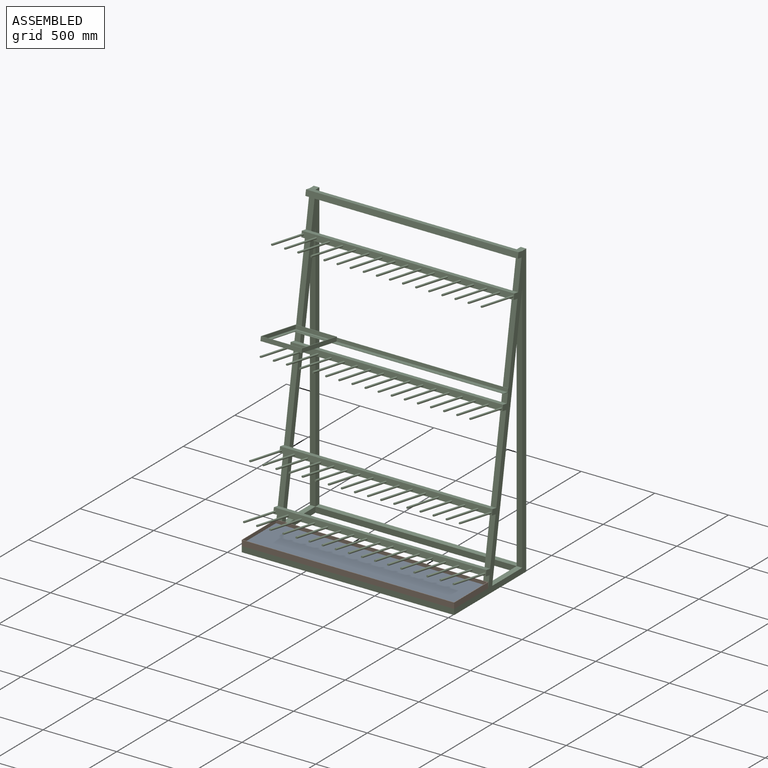
[diagram: assembled view]
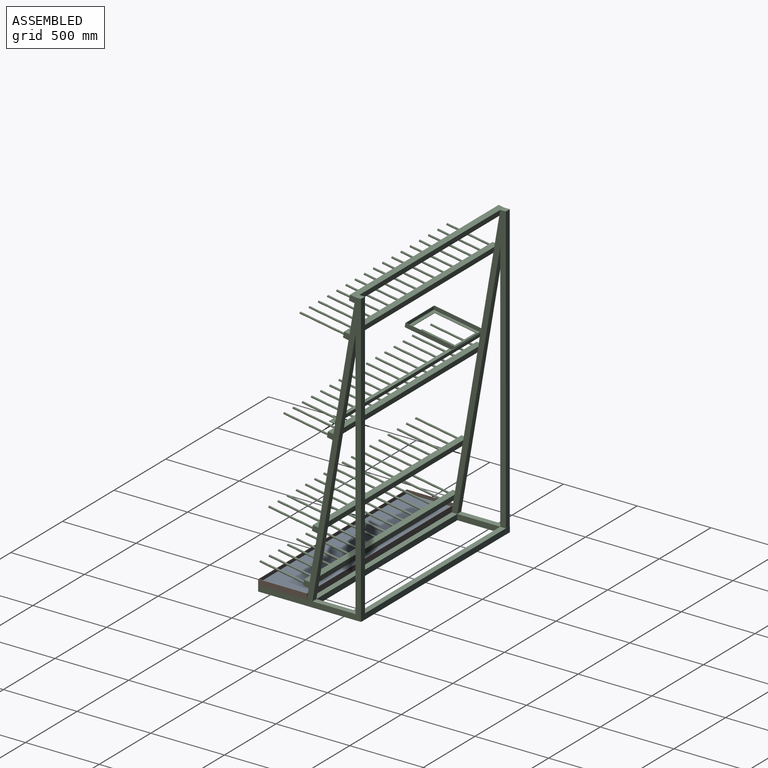
[diagram: assembled view, second angle]
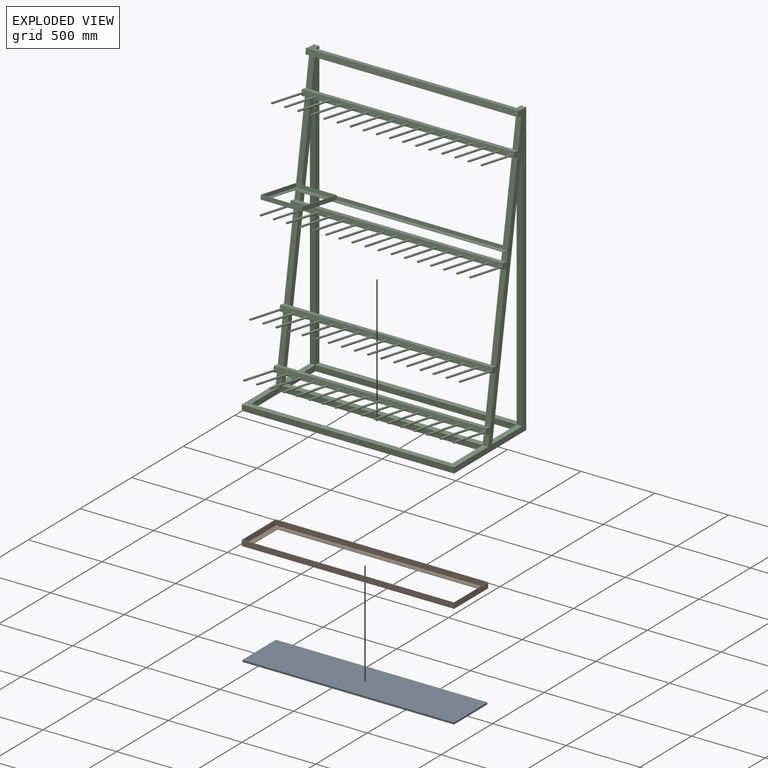
[diagram: exploded view]
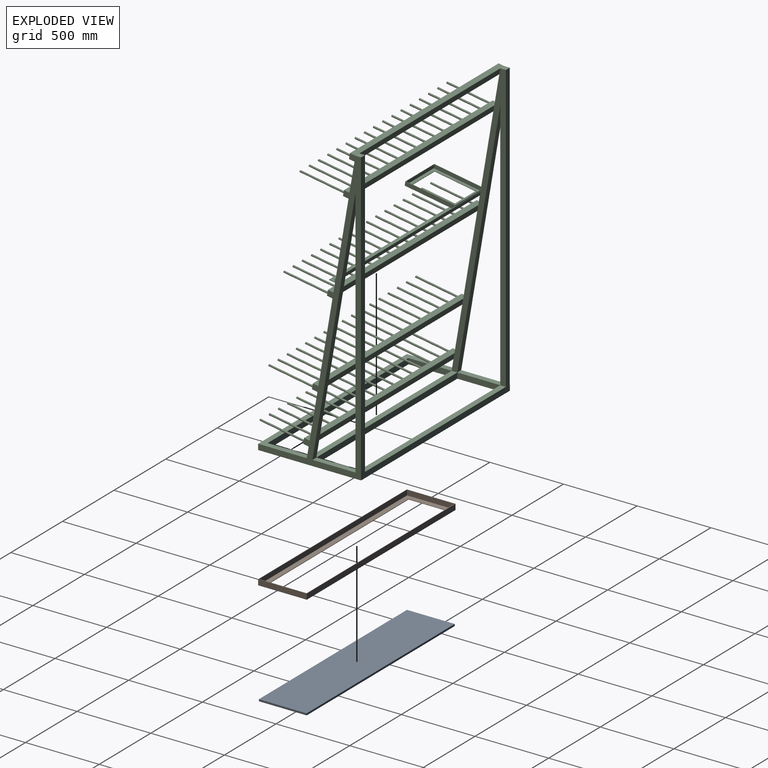
[diagram: exploded view, second angle]
ASSEMBLY  parts=3 mates=2
PART A: 6 faces, bbox 1435.1x323.9x12.7 mm
  f0: plane 1435.1x12.7mm, normal (0,-1,0), area 18225.8mm2, adj f1,f3,f4,f5
  f1: plane 323.85x12.7mm, normal (1,0,0), area 4112.9mm2, adj f0,f2,f4,f5
  f2: plane 1435.1x12.7mm, normal (0,1,0), area 18225.8mm2, adj f1,f3,f4,f5
  f3: plane 323.85x12.7mm, normal (-1,0,0), area 4112.9mm2, adj f0,f2,f4,f5
  f4: plane 1435.1x323.85mm, normal (0,0,1), area 464757.1mm2, adj f0,f1,f2,f3
  f5: plane 1435.1x323.85mm, normal (0,0,-1), area 464757.1mm2, adj f0,f1,f2,f3
PART B: 15 faces, bbox 1441.5x330.2x38.1 mm
  f0: plane 1435.1x323.85mm, normal (0,0,1), area 117983.6mm2, adj f4,f5,f6,f7,f10,f11,f12,f13
  f1: plane 1441.45x38.1mm, normal (0,-1,0), area 54919.2mm2, adj f2,f8,f9,f14
  f2: plane 330.2x38.1mm, normal (1,0,0), area 12580.6mm2, adj f1,f3,f9,f14
  f3: plane 1441.45x38.1mm, normal (0,1,0), area 54919.2mm2, adj f2,f8,f9,f14
  f4: plane 254x3.18mm, normal (-1,0,0), area 806.5mm2, adj f0,f5,f7,f9
  f5: plane 1365.25x3.18mm, normal (0,1,0), area 4334.7mm2, adj f0,f4,f6,f9
  f6: plane 254x3.18mm, normal (1,0,0), area 806.5mm2, adj f0,f5,f7,f9
  f7: plane 1365.25x3.18mm, normal (0,-1,0), area 4334.7mm2, adj f0,f4,f6,f9
  f8: plane 330.2x38.1mm, normal (-1,0,0), area 12580.6mm2, adj f1,f3,f9,f14
  f9: plane 1441.45x330.2mm, normal (0,0,-1), area 129193.3mm2, adj f1,f2,f3,f4,f5,f6,f7,f8
  f10: plane 1435.1x34.93mm, normal (0,-1,0), area 50120.9mm2, adj f0,f11,f13,f14
  f11: plane 323.85x34.93mm, normal (-1,0,0), area 11310.5mm2, adj f0,f10,f12,f14
  f12: plane 1435.1x34.93mm, normal (0,1,0), area 50120.9mm2, adj f0,f11,f13,f14
  f13: plane 323.85x34.93mm, normal (1,0,0), area 11310.5mm2, adj f0,f10,f12,f14
  f14: plane 1441.45x330.2mm, normal (0,0,1), area 11209.7mm2, adj f1,f2,f3,f8,f10,f11,f12,f13
PART C: 219 faces, bbox 1441.5x699x1987.6 mm
  f0: plane 1162.05x21.91mm, normal (0,-0.99,0.17), area 25826.6mm2, adj f27,f168,f170,f172
  f1: plane 331.79x273.05mm, normal (0,0.17,0.99), area 25120.9mm2, adj f174,f175,f176,f177,f180,f181,f182,f183
  f2: plane 300.49x279.4mm, normal (0,-0.17,-0.99), area 21290.3mm2, adj f33,f171,f172,f173,f174,f175,f177
  f3: plane 515.76x87.65mm, normal (0,-0.99,0.17), area 19932.3mm2, adj f16,f33,f59,f168
  f4: plane 62.6x38.1mm, normal (0,-0.99,0.17), area 2419.3mm2, adj f23,f27,f56,f167
  f5: plane 313.01x53.19mm, normal (0,-0.99,0.17), area 12096.7mm2, adj f16,f33,f50,f52
  f6: plane 563.42x95.75mm, normal (0,-0.99,0.17), area 21774.2mm2, adj f16,f33,f53,f55
  f7: plane 62.6x38.1mm, normal (0,-0.99,0.17), area 2419.3mm2, adj f16,f33,f56,f167
  f8: plane 200.33x38.1mm, normal (0,-0.99,0.17), area 7741.9mm2, adj f16,f33,f41,f58
  f9: plane 515.76x87.65mm, normal (0,-0.99,0.17), area 19932.3mm2, adj f23,f27,f59,f168
  f10: plane 200.33x38.1mm, normal (0,-0.99,0.17), area 7741.9mm2, adj f23,f27,f41,f58
  f11: plane 563.42x95.75mm, normal (0,-0.99,0.17), area 21774.2mm2, adj f23,f27,f53,f55
  f12: plane 313.01x53.19mm, normal (0,-0.99,0.17), area 12096.7mm2, adj f23,f27,f50,f52
  f13: plane 75.12x38.1mm, normal (0,-0.99,0.17), area 2903.2mm2, adj f23,f27,f45,f49
  f14: plane 292.1x38.1mm, normal (1,0,0), area 11129mm2, adj f15,f30,f45,f48
  f15: plane 1365.25x38.1mm, normal (0,-1,0), area 52016mm2, adj f14,f19,f30,f47
  f16: plane 1943.1x368.3mm, normal (1,0,0), area 144731.1mm2, adj f3,f5,f6,f7,f8,f17,f19,f20
  f17: plane 75.12x38.1mm, normal (0,-0.99,0.17), area 2903.2mm2, adj f16,f33,f45,f49
  f18: plane 291.55x38.1mm, normal (0,0,1), area 11108.2mm2, adj f20,f33,f35,f40
  f19: plane 1365.25x38.65mm, normal (0,0,1), area 52761.7mm2, adj f15,f16,f22,f23
  f20: plane 1715.68x38.1mm, normal (0,-1,0), area 65367.5mm2, adj f16,f18,f33,f40
  f21: plane 38.1x0.55mm, normal (0,0,1), area 20.8mm2, adj f33,f36,f37,f38
  f22: plane 1365.25x38.1mm, normal (0,1,0), area 52016mm2, adj f19,f24,f30,f35
  f23: plane 1943.1x368.3mm, normal (-1,0,0), area 144731.1mm2, adj f4,f9,f10,f11,f12,f13,f19,f25
  f24: plane 291.55x38.1mm, normal (-1,0,0), area 11108.2mm2, adj f22,f26,f30,f34
  f25: plane 1715.68x38.1mm, normal (0,-1,0), area 65367.5mm2, adj f23,f26,f27,f31
  f26: plane 291.55x38.1mm, normal (0,0,1), area 11108.2mm2, adj f24,f25,f27,f31
  f27: plane 1987.58x698.5mm, normal (1,0,0), area 178803.6mm2, adj f0,f4,f9,f10,f11,f12,f13,f25
  f28: plane 1981.2x1403.35mm, normal (0,1,0), area 127499.7mm2, adj f23,f27,f29,f30,f32,f36
  f29: plane 38.1x38.1mm, normal (0,0,1), area 1451.6mm2, adj f23,f27,f28,f42
  f30: plane 1441.45x699.05mm, normal (0,0,-1), area 210040.3mm2, adj f14,f15,f22,f24,f27,f28,f33,f34
  f31: plane 1715.68x291.55mm, normal (0,0.99,-0.17), area 66304.6mm2, adj f23,f25,f26,f27
  f32: plane 1365.25x38.1mm, normal (0,0,1), area 52016mm2, adj f16,f23,f28,f34
  f33: plane 1987.58x699.05mm, normal (-1,0,0), area 188622.8mm2, adj f2,f3,f5,f6,f7,f8,f17,f18
  f34: plane 1365.25x38.1mm, normal (0,-1,0), area 52016mm2, adj f24,f30,f32,f35
  f35: plane 291.55x38.1mm, normal (1,0,0), area 11108.2mm2, adj f18,f22,f30,f34
  f36: plane 38.1x0.55mm, normal (1,0,0), area 20.8mm2, adj f21,f28,f30,f37
  f37: plane 38.1x38.1mm, normal (0,1,0), area 1451.6mm2, adj f21,f30,f33,f36
  f38: plane 1943.1x38.1mm, normal (0,1,0), area 74032.1mm2, adj f16,f21,f33,f39
  f39: plane 38.1x38.1mm, normal (0,0,1), area 1451.6mm2, adj f16,f33,f38,f42
  f40: plane 1715.68x291.55mm, normal (0,0.99,-0.17), area 66304.6mm2, adj f16,f18,f20,f33
  f41: plane 1441.45x37.56mm, normal (0,-0.17,-0.99), area 54919.2mm2, adj f8,f10,f27,f33,f43,f44
  f42: plane 1441.45x37.56mm, normal (0,0.17,0.99), area 54919.2mm2, adj f27,f29,f33,f39,f43,f44
  f43: plane 1441.45x37.56mm, normal (0,-0.99,0.17), area 54919.2mm2, adj f27,f33,f41,f42
  f44: plane 1365.25x37.56mm, normal (0,0.99,-0.17), area 52016mm2, adj f16,f23,f41,f42
  f45: plane 1441.45x330.2mm, normal (0,0,1), area 77177.3mm2, adj f13,f14,f17,f27,f33,f46,f47,f48
  f46: plane 1441.45x38.1mm, normal (0,-1,0), area 54919.2mm2, adj f27,f30,f33,f45
  f47: plane 292.1x38.1mm, normal (-1,0,0), area 11129mm2, adj f15,f30,f45,f48
  f48: plane 1365.25x38.1mm, normal (0,1,0), area 52016mm2, adj f14,f30,f45,f47
  f49: plane 1441.45x37.56mm, normal (0,-0.17,-0.99), area 54919.2mm2, adj f13,f17,f27,f33,f51,f64
  f50: plane 1441.45x37.56mm, normal (0,0.17,0.99), area 54919.2mm2, adj f5,f12,f27,f33,f51,f64
  f51: plane 1441.45x37.56mm, normal (0,-0.99,0.17), area 52765.7mm2, adj f27,f33,f49,f50,f65,f67,f69,f71
  f52: plane 1441.45x37.56mm, normal (0,-0.17,-0.99), area 54919.2mm2, adj f5,f12,f27,f33,f54,f63
  f53: plane 1441.45x37.56mm, normal (0,0.17,0.99), area 54919.2mm2, adj f6,f11,f27,f33,f54,f63
  f54: plane 1441.45x37.56mm, normal (0,-0.99,0.17), area 52765.7mm2, adj f27,f33,f52,f53,f99,f101,f103,f105
  f55: plane 1441.45x37.56mm, normal (0,-0.17,-0.99), area 54919.2mm2, adj f6,f11,f27,f33,f57,f62
  f56: plane 1441.45x37.56mm, normal (0,0.17,0.99), area 54919.2mm2, adj f4,f7,f27,f33,f57,f62
  f57: plane 1441.45x37.56mm, normal (0,-0.99,0.17), area 52765.7mm2, adj f27,f33,f55,f56,f133,f135,f137,f139
  f58: plane 1441.45x37.56mm, normal (0,0.17,0.99), area 54919.2mm2, adj f8,f10,f27,f33,f60,f61
  f59: plane 1441.45x37.56mm, normal (0,-0.17,-0.99), area 54919.2mm2, adj f3,f9,f27,f33,f60,f61
  f60: plane 1441.45x37.56mm, normal (0,-0.99,0.17), area 52765.7mm2, adj f27,f33,f58,f59,f185,f187,f189,f191
  f61: plane 1365.25x37.56mm, normal (0,0.99,-0.17), area 52016mm2, adj f16,f23,f58,f59
  f62: plane 1365.25x37.56mm, normal (0,0.99,-0.17), area 52016mm2, adj f16,f23,f55,f56
  f63: plane 1365.25x37.56mm, normal (0,0.99,-0.17), area 52016mm2, adj f16,f23,f52,f53
  f64: plane 1365.25x37.56mm, normal (0,0.99,-0.17), area 52016mm2, adj f16,f23,f49,f50
  f65: cylinder r=6.35mm len=302.62mm, axis (0,0.99,-0.17), area 12161mm2, adj f51,f66
  f66: plane 12.7x12.52mm, normal (0,-0.99,0.17), area 126.7mm2, adj f65
  f67: cylinder r=6.35mm len=302.62mm, axis (0,0.99,-0.17), area 12161mm2, adj f51,f68
  f68: plane 12.7x12.52mm, normal (0,-0.99,0.17), area 126.7mm2, adj f67
  f69: cylinder r=6.35mm len=302.62mm, axis (0,0.99,-0.17), area 12161mm2, adj f51,f70
  f70: plane 12.7x12.52mm, normal (0,-0.99,0.17), area 126.7mm2, adj f69
  f71: cylinder r=6.35mm len=302.62mm, axis (0,0.99,-0.17), area 12161mm2, adj f51,f72
  f72: plane 12.7x12.52mm, normal (0,-0.99,0.17), area 126.7mm2, adj f71
  f73: cylinder r=6.35mm len=302.62mm, axis (0,0.99,-0.17), area 12161mm2, adj f51,f74
  f74: plane 12.7x12.52mm, normal (0,-0.99,0.17), area 126.7mm2, adj f73
  f75: cylinder r=6.35mm len=302.62mm, axis (0,0.99,-0.17), area 12161mm2, adj f51,f76
  f76: plane 12.7x12.52mm, normal (0,-0.99,0.17), area 126.7mm2, adj f75
  f77: cylinder r=6.35mm len=302.62mm, axis (0,0.99,-0.17), area 12161mm2, adj f51,f78
  f78: plane 12.7x12.52mm, normal (0,-0.99,0.17), area 126.7mm2, adj f77
  f79: cylinder r=6.35mm len=302.62mm, axis (0,0.99,-0.17), area 12161mm2, adj f51,f80
  f80: plane 12.7x12.52mm, normal (0,-0.99,0.17), area 126.7mm2, adj f79
  f81: cylinder r=6.35mm len=302.62mm, axis (0,0.99,-0.17), area 12161mm2, adj f51,f82
  f82: plane 12.7x12.52mm, normal (0,-0.99,0.17), area 126.7mm2, adj f81
  f83: cylinder r=6.35mm len=302.62mm, axis (0,0.99,-0.17), area 12161mm2, adj f51,f84
  f84: plane 12.7x12.52mm, normal (0,-0.99,0.17), area 126.7mm2, adj f83
  f85: cylinder r=6.35mm len=302.62mm, axis (0,0.99,-0.17), area 12161mm2, adj f51,f86
  f86: plane 12.7x12.52mm, normal (0,-0.99,0.17), area 126.7mm2, adj f85
  f87: cylinder r=6.35mm len=302.62mm, axis (0,0.99,-0.17), area 12161mm2, adj f51,f88
  f88: plane 12.7x12.52mm, normal (0,-0.99,0.17), area 126.7mm2, adj f87
  f89: cylinder r=6.35mm len=302.62mm, axis (0,0.99,-0.17), area 12161mm2, adj f51,f90
  f90: plane 12.7x12.52mm, normal (0,-0.99,0.17), area 126.7mm2, adj f89
  f91: cylinder r=6.35mm len=302.62mm, axis (0,0.99,-0.17), area 12161mm2, adj f51,f92
  f92: plane 12.7x12.52mm, normal (0,-0.99,0.17), area 126.7mm2, adj f91
  f93: cylinder r=6.35mm len=302.62mm, axis (0,0.99,-0.17), area 12161mm2, adj f51,f94
  f94: plane 12.7x12.52mm, normal (0,-0.99,0.17), area 126.7mm2, adj f93
  f95: cylinder r=6.35mm len=302.62mm, axis (0,0.99,-0.17), area 12161mm2, adj f51,f96
  f96: plane 12.7x12.52mm, normal (0,-0.99,0.17), area 126.7mm2, adj f95
  f97: cylinder r=6.35mm len=302.62mm, axis (0,0.99,-0.17), area 12161mm2, adj f51,f98
  f98: plane 12.7x12.52mm, normal (0,-0.99,0.17), area 126.7mm2, adj f97
  f99: cylinder r=6.35mm len=302.62mm, axis (0,0.99,-0.17), area 12161mm2, adj f54,f100
  f100: plane 12.7x12.52mm, normal (0,-0.99,0.17), area 126.7mm2, adj f99
  f101: cylinder r=6.35mm len=302.62mm, axis (0,0.99,-0.17), area 12161mm2, adj f54,f102
  f102: plane 12.7x12.52mm, normal (0,-0.99,0.17), area 126.7mm2, adj f101
  f103: cylinder r=6.35mm len=302.62mm, axis (0,0.99,-0.17), area 12161mm2, adj f54,f104
  f104: plane 12.7x12.52mm, normal (0,-0.99,0.17), area 126.7mm2, adj f103
  f105: cylinder r=6.35mm len=302.62mm, axis (0,0.99,-0.17), area 12161mm2, adj f54,f106
  f106: plane 12.7x12.52mm, normal (0,-0.99,0.17), area 126.7mm2, adj f105
  f107: cylinder r=6.35mm len=302.62mm, axis (0,0.99,-0.17), area 12161mm2, adj f54,f108
  f108: plane 12.7x12.52mm, normal (0,-0.99,0.17), area 126.7mm2, adj f107
  f109: cylinder r=6.35mm len=302.62mm, axis (0,0.99,-0.17), area 12161mm2, adj f54,f110
  f110: plane 12.7x12.52mm, normal (0,-0.99,0.17), area 126.7mm2, adj f109
  f111: cylinder r=6.35mm len=302.62mm, axis (0,0.99,-0.17), area 12161mm2, adj f54,f112
  f112: plane 12.7x12.52mm, normal (0,-0.99,0.17), area 126.7mm2, adj f111
  f113: cylinder r=6.35mm len=302.62mm, axis (0,0.99,-0.17), area 12161mm2, adj f54,f114
  f114: plane 12.7x12.52mm, normal (0,-0.99,0.17), area 126.7mm2, adj f113
  f115: cylinder r=6.35mm len=302.62mm, axis (0,0.99,-0.17), area 12161mm2, adj f54,f116
  f116: plane 12.7x12.52mm, normal (0,-0.99,0.17), area 126.7mm2, adj f115
  f117: cylinder r=6.35mm len=302.62mm, axis (0,0.99,-0.17), area 12161mm2, adj f54,f118
  f118: plane 12.7x12.52mm, normal (0,-0.99,0.17), area 126.7mm2, adj f117
  f119: cylinder r=6.35mm len=302.62mm, axis (0,0.99,-0.17), area 12161mm2, adj f54,f120
  f120: plane 12.7x12.52mm, normal (0,-0.99,0.17), area 126.7mm2, adj f119
  f121: cylinder r=6.35mm len=302.62mm, axis (0,0.99,-0.17), area 12161mm2, adj f54,f122
  f122: plane 12.7x12.52mm, normal (0,-0.99,0.17), area 126.7mm2, adj f121
  f123: cylinder r=6.35mm len=302.62mm, axis (0,0.99,-0.17), area 12161mm2, adj f54,f124
  f124: plane 12.7x12.52mm, normal (0,-0.99,0.17), area 126.7mm2, adj f123
  f125: cylinder r=6.35mm len=302.62mm, axis (0,0.99,-0.17), area 12161mm2, adj f54,f126
  f126: plane 12.7x12.52mm, normal (0,-0.99,0.17), area 126.7mm2, adj f125
  f127: cylinder r=6.35mm len=302.62mm, axis (0,0.99,-0.17), area 12161mm2, adj f54,f128
  f128: plane 12.7x12.52mm, normal (0,-0.99,0.17), area 126.7mm2, adj f127
  f129: cylinder r=6.35mm len=302.62mm, axis (0,0.99,-0.17), area 12161mm2, adj f54,f130
  f130: plane 12.7x12.52mm, normal (0,-0.99,0.17), area 126.7mm2, adj f129
  f131: cylinder r=6.35mm len=302.62mm, axis (0,0.99,-0.17), area 12161mm2, adj f54,f132
  f132: plane 12.7x12.52mm, normal (0,-0.99,0.17), area 126.7mm2, adj f131
  f133: cylinder r=6.35mm len=302.62mm, axis (0,0.99,-0.17), area 12161mm2, adj f57,f134
  f134: plane 12.7x12.52mm, normal (0,-0.99,0.17), area 126.7mm2, adj f133
  f135: cylinder r=6.35mm len=302.62mm, axis (0,0.99,-0.17), area 12161mm2, adj f57,f136
  f136: plane 12.7x12.52mm, normal (0,-0.99,0.17), area 126.7mm2, adj f135
  f137: cylinder r=6.35mm len=302.62mm, axis (0,0.99,-0.17), area 12161mm2, adj f57,f138
  f138: plane 12.7x12.52mm, normal (0,-0.99,0.17), area 126.7mm2, adj f137
  f139: cylinder r=6.35mm len=302.62mm, axis (0,0.99,-0.17), area 12161mm2, adj f57,f140
  f140: plane 12.7x12.52mm, normal (0,-0.99,0.17), area 126.7mm2, adj f139
  f141: cylinder r=6.35mm len=302.62mm, axis (0,0.99,-0.17), area 12161mm2, adj f57,f142
  f142: plane 12.7x12.52mm, normal (0,-0.99,0.17), area 126.7mm2, adj f141
  f143: cylinder r=6.35mm len=302.62mm, axis (0,0.99,-0.17), area 12161mm2, adj f57,f144
  f144: plane 12.7x12.52mm, normal (0,-0.99,0.17), area 126.7mm2, adj f143
  f145: cylinder r=6.35mm len=302.62mm, axis (0,0.99,-0.17), area 12161mm2, adj f57,f146
  f146: plane 12.7x12.52mm, normal (0,-0.99,0.17), area 126.7mm2, adj f145
  f147: cylinder r=6.35mm len=302.62mm, axis (0,0.99,-0.17), area 12161mm2, adj f57,f148
  f148: plane 12.7x12.52mm, normal (0,-0.99,0.17), area 126.7mm2, adj f147
  f149: cylinder r=6.35mm len=302.62mm, axis (0,0.99,-0.17), area 12161mm2, adj f57,f150
  f150: plane 12.7x12.52mm, normal (0,-0.99,0.17), area 126.7mm2, adj f149
  f151: cylinder r=6.35mm len=302.62mm, axis (0,0.99,-0.17), area 12161mm2, adj f57,f152
  f152: plane 12.7x12.52mm, normal (0,-0.99,0.17), area 126.7mm2, adj f151
  f153: cylinder r=6.35mm len=302.62mm, axis (0,0.99,-0.17), area 12161mm2, adj f57,f154
  f154: plane 12.7x12.52mm, normal (0,-0.99,0.17), area 126.7mm2, adj f153
  f155: cylinder r=6.35mm len=302.62mm, axis (0,0.99,-0.17), area 12161mm2, adj f57,f156
  f156: plane 12.7x12.52mm, normal (0,-0.99,0.17), area 126.7mm2, adj f155
  f157: cylinder r=6.35mm len=302.62mm, axis (0,0.99,-0.17), area 12161mm2, adj f57,f158
  f158: plane 12.7x12.52mm, normal (0,-0.99,0.17), area 126.7mm2, adj f157
  f159: cylinder r=6.35mm len=302.62mm, axis (0,0.99,-0.17), area 12161mm2, adj f57,f160
  f160: plane 12.7x12.52mm, normal (0,-0.99,0.17), area 126.7mm2, adj f159
  f161: cylinder r=6.35mm len=302.62mm, axis (0,0.99,-0.17), area 12161mm2, adj f57,f162
  f162: plane 12.7x12.52mm, normal (0,-0.99,0.17), area 126.7mm2, adj f161
  f163: cylinder r=6.35mm len=302.62mm, axis (0,0.99,-0.17), area 12161mm2, adj f57,f164
  f164: plane 12.7x12.52mm, normal (0,-0.99,0.17), area 126.7mm2, adj f163
  f165: cylinder r=6.35mm len=302.62mm, axis (0,0.99,-0.17), area 12161mm2, adj f57,f166
  f166: plane 12.7x12.52mm, normal (0,-0.99,0.17), area 126.7mm2, adj f165
  f167: plane 1441.45x40.69mm, normal (0,-0.17,-0.99), area 59495.8mm2, adj f4,f7,f27,f33,f169,f171
  f168: plane 1441.45x3.13mm, normal (0,0.17,0.99), area 4576.6mm2, adj f0,f3,f9,f27,f33,f169,f179
  f169: plane 1365.25x25.04mm, normal (0,0.99,-0.17), area 34677.4mm2, adj f16,f23,f167,f168
  f170: plane 1162.05x37.56mm, normal (0,0.17,0.99), area 44274.1mm2, adj f0,f27,f171,f172
  f171: plane 1441.45x3.13mm, normal (0,-0.99,0.17), area 4576.6mm2, adj f2,f27,f33,f167,f170,f178
  f172: plane 342.84x85.62mm, normal (1,0,0), area 9798.4mm2, adj f0,f2,f170,f173,f179,f184
  f173: plane 279.4x28.17mm, normal (0,-0.99,0.17), area 7983.9mm2, adj f2,f33,f172,f184
  f174: plane 228.6x3.13mm, normal (0,0.99,-0.17), area 725.8mm2, adj f1,f2,f175,f177
  f175: plane 288.5x52.07mm, normal (-1,0,0), area 927.4mm2, adj f1,f2,f174,f176,f178
  f176: plane 228.6x3.13mm, normal (0,-0.99,0.17), area 725.8mm2, adj f1,f175,f177,f178
  f177: plane 288.5x52.07mm, normal (1,0,0), area 927.4mm2, adj f1,f2,f174,f176,f178
  f178: plane 228.6x12.52mm, normal (0,0.17,0.99), area 2903.2mm2, adj f171,f175,f176,f177
  f179: plane 279.4x6.26mm, normal (0,0.99,-0.17), area 1774.2mm2, adj f33,f168,f172,f184
  f180: plane 336.05x81.42mm, normal (-1,0,0), area 8548.4mm2, adj f1,f181,f183,f184
  f181: plane 273.05x25.04mm, normal (0,0.99,-0.17), area 6935.5mm2, adj f1,f180,f182,f184
  f182: plane 336.05x81.42mm, normal (1,0,0), area 8548.4mm2, adj f1,f181,f183,f184
  f183: plane 273.05x25.04mm, normal (0,-0.99,0.17), area 6935.5mm2, adj f1,f180,f182,f184
  f184: plane 338.05x279.4mm, normal (0,0.17,0.99), area 3911.3mm2, adj f33,f172,f173,f179,f180,f181,f182,f183
  f185: cylinder r=6.35mm len=302.62mm, axis (0,0.99,-0.17), area 12161mm2, adj f60,f186
  f186: plane 12.7x12.52mm, normal (0,-0.99,0.17), area 126.7mm2, adj f185
  f187: cylinder r=6.35mm len=302.62mm, axis (0,0.99,-0.17), area 12161mm2, adj f60,f188
  f188: plane 12.7x12.52mm, normal (0,-0.99,0.17), area 126.7mm2, adj f187
  f189: cylinder r=6.35mm len=302.62mm, axis (0,0.99,-0.17), area 12161mm2, adj f60,f190
  f190: plane 12.7x12.52mm, normal (0,-0.99,0.17), area 126.7mm2, adj f189
  f191: cylinder r=6.35mm len=302.62mm, axis (0,0.99,-0.17), area 12161mm2, adj f60,f192
  f192: plane 12.7x12.52mm, normal (0,-0.99,0.17), area 126.7mm2, adj f191
  f193: cylinder r=6.35mm len=302.62mm, axis (0,0.99,-0.17), area 12161mm2, adj f60,f194
  f194: plane 12.7x12.52mm, normal (0,-0.99,0.17), area 126.7mm2, adj f193
  f195: cylinder r=6.35mm len=302.62mm, axis (0,0.99,-0.17), area 12161mm2, adj f60,f196
  f196: plane 12.7x12.52mm, normal (0,-0.99,0.17), area 126.7mm2, adj f195
  f197: cylinder r=6.35mm len=302.62mm, axis (0,0.99,-0.17), area 12161mm2, adj f60,f198
  f198: plane 12.7x12.52mm, normal (0,-0.99,0.17), area 126.7mm2, adj f197
  f199: cylinder r=6.35mm len=302.62mm, axis (0,0.99,-0.17), area 12161mm2, adj f60,f200
  f200: plane 12.7x12.52mm, normal (0,-0.99,0.17), area 126.7mm2, adj f199
  f201: cylinder r=6.35mm len=302.62mm, axis (0,0.99,-0.17), area 12161mm2, adj f60,f202
  f202: plane 12.7x12.52mm, normal (0,-0.99,0.17), area 126.7mm2, adj f201
  f203: cylinder r=6.35mm len=302.62mm, axis (0,0.99,-0.17), area 12161mm2, adj f60,f204
  f204: plane 12.7x12.52mm, normal (0,-0.99,0.17), area 126.7mm2, adj f203
  f205: cylinder r=6.35mm len=302.62mm, axis (0,0.99,-0.17), area 12161mm2, adj f60,f206
  f206: plane 12.7x12.52mm, normal (0,-0.99,0.17), area 126.7mm2, adj f205
  f207: cylinder r=6.35mm len=302.62mm, axis (0,0.99,-0.17), area 12161mm2, adj f60,f208
  f208: plane 12.7x12.52mm, normal (0,-0.99,0.17), area 126.7mm2, adj f207
  f209: cylinder r=6.35mm len=302.62mm, axis (0,0.99,-0.17), area 12161mm2, adj f60,f210
  f210: plane 12.7x12.52mm, normal (0,-0.99,0.17), area 126.7mm2, adj f209
  f211: cylinder r=6.35mm len=302.62mm, axis (0,0.99,-0.17), area 12161mm2, adj f60,f212
  f212: plane 12.7x12.52mm, normal (0,-0.99,0.17), area 126.7mm2, adj f211
  f213: cylinder r=6.35mm len=302.62mm, axis (0,0.99,-0.17), area 12161mm2, adj f60,f214
  f214: plane 12.7x12.52mm, normal (0,-0.99,0.17), area 126.7mm2, adj f213
  f215: cylinder r=6.35mm len=302.62mm, axis (0,0.99,-0.17), area 12161mm2, adj f60,f216
  f216: plane 12.7x12.52mm, normal (0,-0.99,0.17), area 126.7mm2, adj f215
  f217: cylinder r=6.35mm len=302.62mm, axis (0,0.99,-0.17), area 12161mm2, adj f60,f218
  f218: plane 12.7x12.52mm, normal (0,-0.99,0.17), area 126.7mm2, adj f217
PLACE A t=(-1838.66,-538.69,114.91)mm
PLACE B t=(-1838.66,-538.69,114.91)mm
PLACE C t=(-1136.99,-24.34,76.81)mm
MATE fastened A.f5 <-> B.f0  axis (0,0,-1) through (-2556.21,-376.77,118.08)mm
MATE fastened B.f9 <-> C.f45  axis (0,0,-1) through (-2559.39,-373.59,114.91)mm
